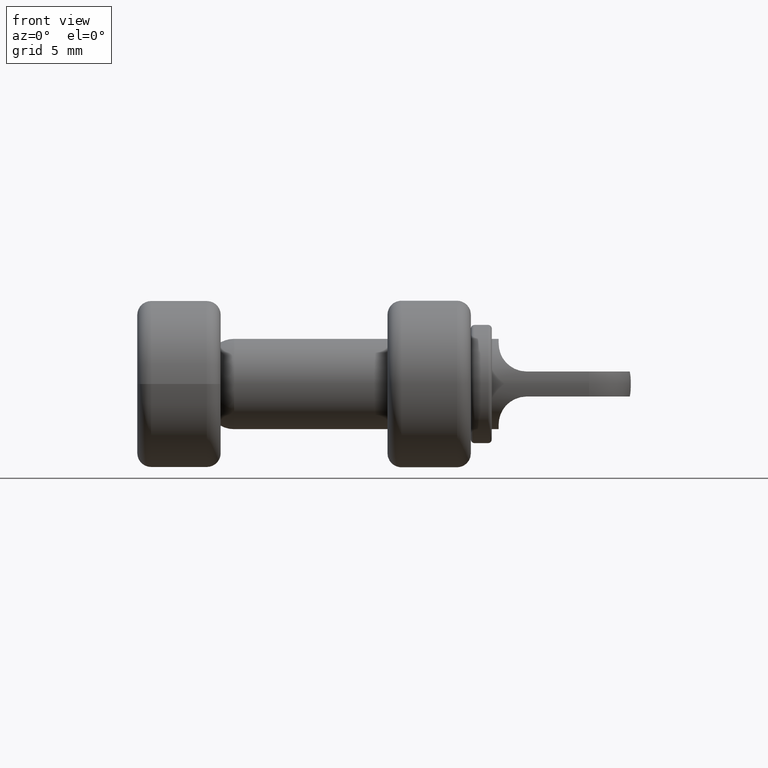
[diagram: clean part render]
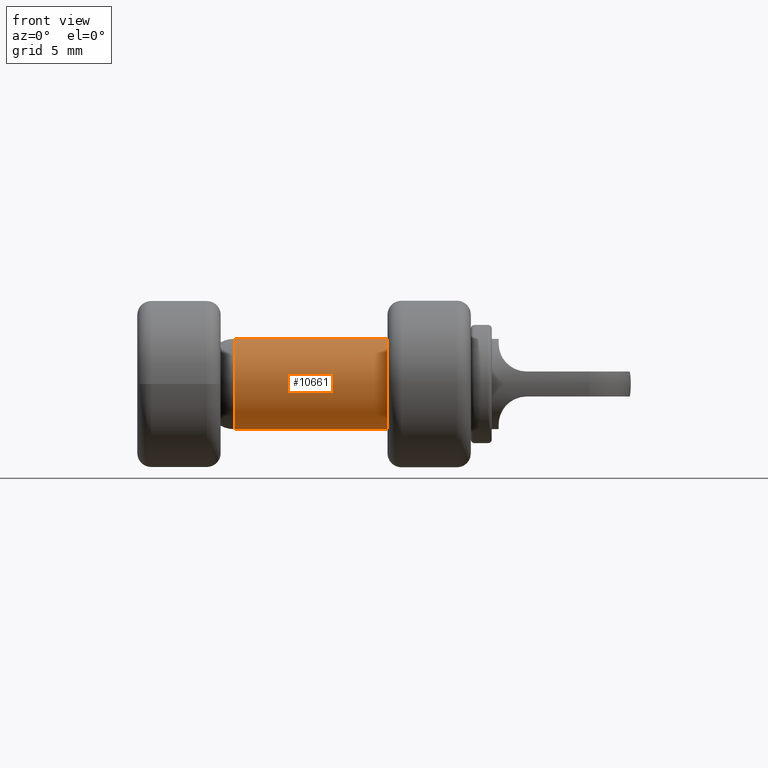
[diagram: same view with one face highlighted and labeled with its STEP entity id]
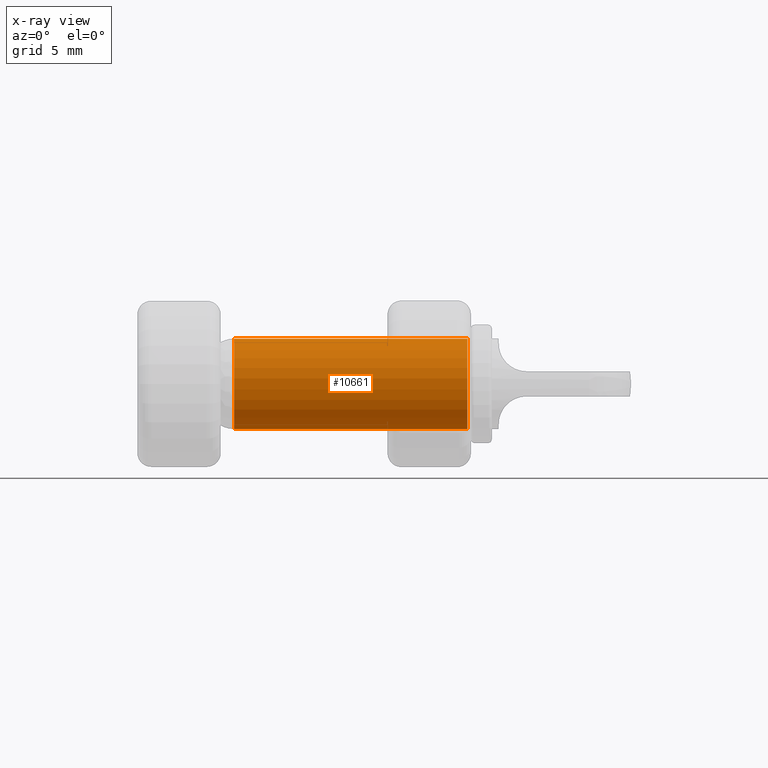
[diagram: x-ray of the same camera — body ghosted, the highlighted face saturated]
A machine part, front view. The second image highlights one B-rep face of the part: STEP entity #10661.
The next image is the same camera in x-ray: the body ghosted, the highlighted face saturated — about 0% of this face is hidden behind the body in this view.
In plain terms, the highlighted cylindrical surface (partial cylindrical patch) has radius 3.25 mm, axis along (-1, -0, -0).
Its self-contained STEP definition (entity closure, byte-faithful):
#266 = CARTESIAN_POINT ( 'NONE',  ( 8.749999999999998200, 3.980102097228898200E-016, -3.250000000000000400 ) ) ;
#399 = CIRCLE ( 'NONE', #3006, 3.250000000000000400 ) ;
#686 = DIRECTION ( 'NONE',  ( 0.0000000000000000000, 0.0000000000000000000, 1.000000000000000000 ) ) ;
#929 = CARTESIAN_POINT ( 'NONE',  ( -8.031754163448141500, 3.980102097228898200E-016, -3.250000000000000400 ) ) ;
#1242 = EDGE_CURVE ( 'NONE', #9008, #4984, #10916, .T. ) ;
#1381 = DIRECTION ( 'NONE',  ( -1.000000000000000000, -0.0000000000000000000, -0.0000000000000000000 ) ) ;
#1402 = VECTOR ( 'NONE', #1381, 1000.000000000000000 ) ;
#1476 = CARTESIAN_POINT ( 'NONE',  ( 9.000000000000000000, 0.0000000000000000000, 3.250000000000000400 ) ) ;
#1512 = VERTEX_POINT ( 'NONE', #929 ) ;
#1546 = CYLINDRICAL_SURFACE ( 'NONE', #7292, 3.250000000000000400 ) ;
#1725 = CARTESIAN_POINT ( 'NONE',  ( 8.749999999999998200, 0.0000000000000000000, 3.250000000000000400 ) ) ;
#3006 = AXIS2_PLACEMENT_3D ( 'NONE', #6691, #10034, #8906 ) ;
#3590 = VECTOR ( 'NONE', #6911, 1000.000000000000000 ) ;
#3919 = EDGE_CURVE ( 'NONE', #9928, #9008, #399, .T. ) ;
#4194 = ORIENTED_EDGE ( 'NONE', *, *, #8169, .T. ) ;
#4475 = EDGE_LOOP ( 'NONE', ( #9873, #11804, #11814, #4194 ) ) ;
#4984 = VERTEX_POINT ( 'NONE', #11570 ) ;
#5250 = CARTESIAN_POINT ( 'NONE',  ( 9.000000000000000000, 0.0000000000000000000, 0.0000000000000000000 ) ) ;
#5863 = LINE ( 'NONE', #7000, #3590 ) ;
#6691 = CARTESIAN_POINT ( 'NONE',  ( 8.749999999999998200, 0.0000000000000000000, 0.0000000000000000000 ) ) ;
#6911 = DIRECTION ( 'NONE',  ( -1.000000000000000000, -0.0000000000000000000, -0.0000000000000000000 ) ) ;
#7000 = CARTESIAN_POINT ( 'NONE',  ( 9.000000000000000000, 3.980102097228898200E-016, -3.250000000000000400 ) ) ;
#7178 = AXIS2_PLACEMENT_3D ( 'NONE', #13906, #10739, #10688 ) ;
#7292 = AXIS2_PLACEMENT_3D ( 'NONE', #5250, #10802, #686 ) ;
#7744 = FACE_OUTER_BOUND ( 'NONE', #4475, .T. ) ;
#8133 = CIRCLE ( 'NONE', #7178, 3.250000000000000400 ) ;
#8169 = EDGE_CURVE ( 'NONE', #4984, #1512, #8133, .T. ) ;
#8906 = DIRECTION ( 'NONE',  ( 0.0000000000000000000, 0.0000000000000000000, -1.000000000000000000 ) ) ;
#9008 = VERTEX_POINT ( 'NONE', #1725 ) ;
#9873 = ORIENTED_EDGE ( 'NONE', *, *, #14285, .F. ) ;
#9928 = VERTEX_POINT ( 'NONE', #266 ) ;
#10034 = DIRECTION ( 'NONE',  ( -1.000000000000000000, -0.0000000000000000000, -0.0000000000000000000 ) ) ;
#10661 = ADVANCED_FACE ( 'NONE', ( #7744 ), #1546, .T. ) ;
#10688 = DIRECTION ( 'NONE',  ( 0.0000000000000000000, 0.0000000000000000000, 1.000000000000000000 ) ) ;
#10739 = DIRECTION ( 'NONE',  ( 1.000000000000000000, 0.0000000000000000000, 0.0000000000000000000 ) ) ;
#10802 = DIRECTION ( 'NONE',  ( -1.000000000000000000, -0.0000000000000000000, -0.0000000000000000000 ) ) ;
#10916 = LINE ( 'NONE', #1476, #1402 ) ;
#11570 = CARTESIAN_POINT ( 'NONE',  ( -8.031754163448141500, 0.0000000000000000000, 3.250000000000000400 ) ) ;
#11804 = ORIENTED_EDGE ( 'NONE', *, *, #3919, .T. ) ;
#11814 = ORIENTED_EDGE ( 'NONE', *, *, #1242, .T. ) ;
#13906 = CARTESIAN_POINT ( 'NONE',  ( -8.031754163448141500, 0.0000000000000000000, 0.0000000000000000000 ) ) ;
#14285 = EDGE_CURVE ( 'NONE', #9928, #1512, #5863, .T. ) ;